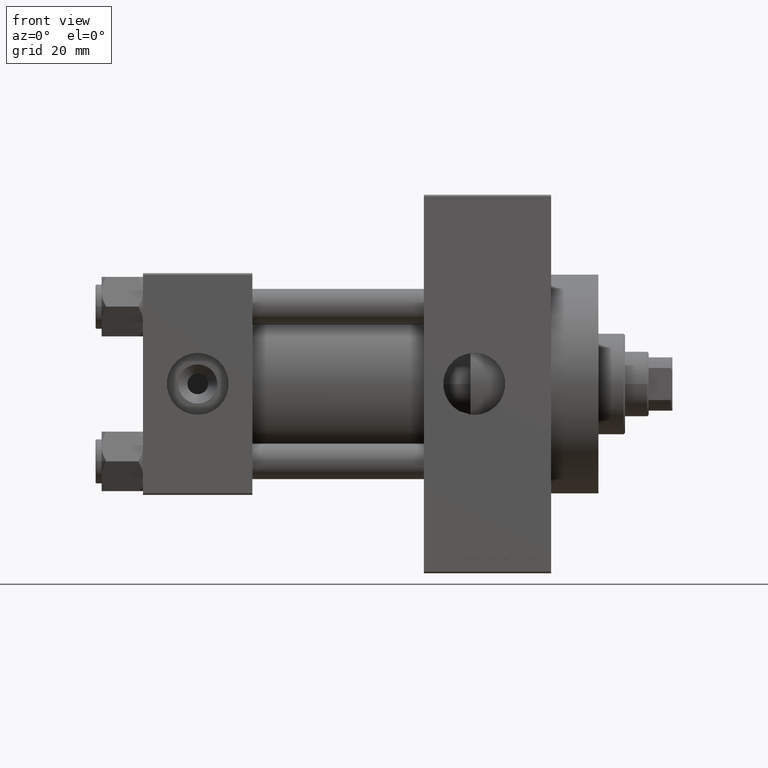
[diagram: clean part render]
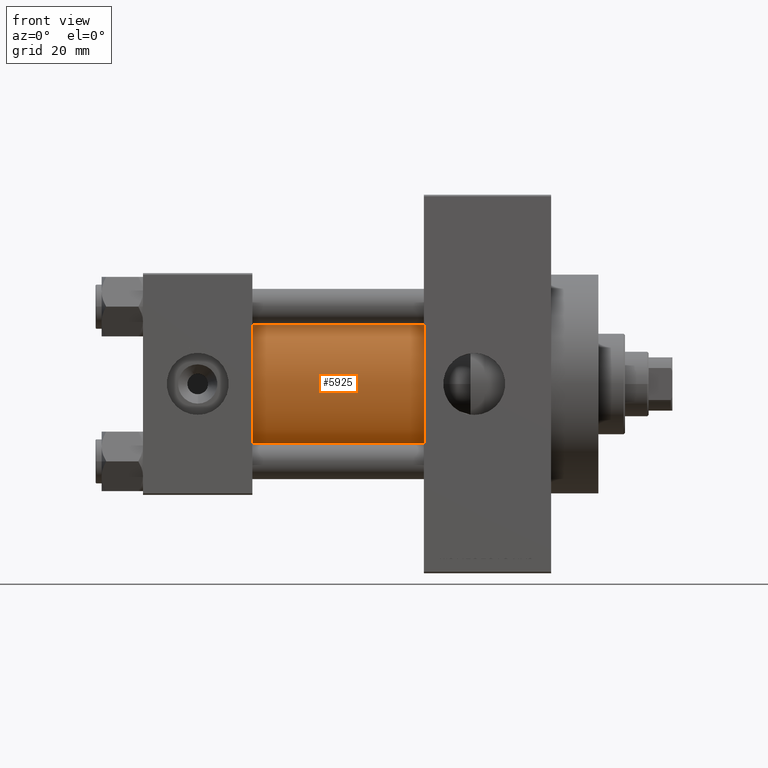
[diagram: same view with one face highlighted and labeled with its STEP entity id]
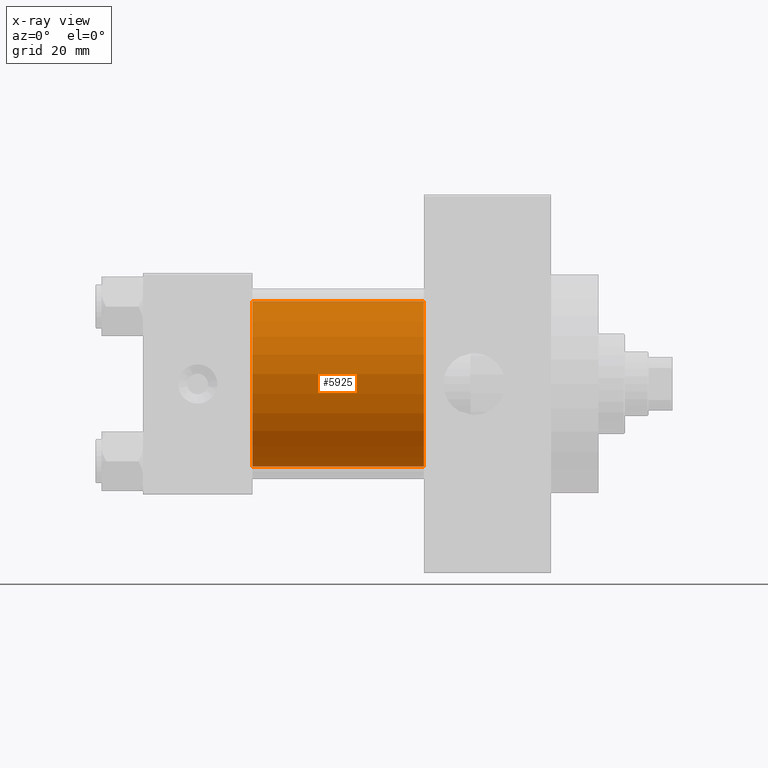
[diagram: x-ray of the same camera — body ghosted, the highlighted face saturated]
A machine part, front view. The second image highlights one B-rep face of the part: STEP entity #5925.
The next image is the same camera in x-ray: the body ghosted, the highlighted face saturated — about 2% of this face is hidden behind the body in this view.
In plain terms, the highlighted cylindrical surface (partial cylindrical patch) has radius 28 mm, axis along (-1, -0, -0).
Its self-contained STEP definition (entity closure, byte-faithful):
#134 = CARTESIAN_POINT ( 'NONE',  ( 37.00000000000000000, 8.269258236473776482E-16, -28.00000000000000000 ) ) ;
#2515 = CARTESIAN_POINT ( 'NONE',  ( 37.00000000000000000, -2.602085213965210642E-15, 28.00000000000000000 ) ) ;
#5925 = ADVANCED_FACE ( 'NONE', ( #14804 ), #22347, .T. ) ;
#7661 = CIRCLE ( 'NONE', #24417, 28.00000000000000000 ) ;
#8524 = CARTESIAN_POINT ( 'NONE',  ( 95.00000000000000000, -2.602085213965210642E-15, 28.00000000000000000 ) ) ;
#9549 = EDGE_CURVE ( 'NONE', #16879, #11946, #7661, .T. ) ;
#9880 = ORIENTED_EDGE ( 'NONE', *, *, #9549, .F. ) ;
#11072 = DIRECTION ( 'NONE',  ( 0.000000000000000000, 0.000000000000000000, 1.000000000000000000 ) ) ;
#11690 = CARTESIAN_POINT ( 'NONE',  ( 95.00000000000000000, 8.269258236473776482E-16, -28.00000000000000000 ) ) ;
#11775 = LINE ( 'NONE', #8524, #28133 ) ;
#11946 = VERTEX_POINT ( 'NONE', #11690 ) ;
#14804 = FACE_OUTER_BOUND ( 'NONE', #41400, .T. ) ;
#15349 = ORIENTED_EDGE ( 'NONE', *, *, #48893, .T. ) ;
#15624 = CARTESIAN_POINT ( 'NONE',  ( 95.00000000000000000, -2.602085213965210642E-15, 28.00000000000000000 ) ) ;
#16879 = VERTEX_POINT ( 'NONE', #15624 ) ;
#17888 = ORIENTED_EDGE ( 'NONE', *, *, #18646, .F. ) ;
#18646 = EDGE_CURVE ( 'NONE', #11946, #32339, #33404, .T. ) ;
#19620 = AXIS2_PLACEMENT_3D ( 'NONE', #22834, #42100, #11072 ) ;
#22347 = CYLINDRICAL_SURFACE ( 'NONE', #19620, 28.00000000000000000 ) ;
#22834 = CARTESIAN_POINT ( 'NONE',  ( 95.00000000000000000, -2.602085213965210642E-15, 0.000000000000000000 ) ) ;
#24417 = AXIS2_PLACEMENT_3D ( 'NONE', #46811, #39804, #39553 ) ;
#24608 = DIRECTION ( 'NONE',  ( 0.000000000000000000, 0.000000000000000000, 1.000000000000000000 ) ) ;
#24860 = CARTESIAN_POINT ( 'NONE',  ( 37.00000000000000000, -2.602085213965210642E-15, 0.000000000000000000 ) ) ;
#27048 = ORIENTED_EDGE ( 'NONE', *, *, #36402, .T. ) ;
#28111 = DIRECTION ( 'NONE',  ( 1.000000000000000000, -0.000000000000000000, 0.000000000000000000 ) ) ;
#28133 = VECTOR ( 'NONE', #39048, 1000.000000000000000 ) ;
#28606 = AXIS2_PLACEMENT_3D ( 'NONE', #24860, #28111, #24608 ) ;
#30335 = VECTOR ( 'NONE', #45155, 1000.000000000000000 ) ;
#31789 = CIRCLE ( 'NONE', #28606, 28.00000000000000000 ) ;
#32339 = VERTEX_POINT ( 'NONE', #134 ) ;
#33404 = LINE ( 'NONE', #37890, #30335 ) ;
#35573 = VERTEX_POINT ( 'NONE', #2515 ) ;
#36402 = EDGE_CURVE ( 'NONE', #35573, #32339, #31789, .T. ) ;
#37890 = CARTESIAN_POINT ( 'NONE',  ( 95.00000000000000000, 8.269258236473776482E-16, -28.00000000000000000 ) ) ;
#39048 = DIRECTION ( 'NONE',  ( -1.000000000000000000, -0.000000000000000000, -0.000000000000000000 ) ) ;
#39553 = DIRECTION ( 'NONE',  ( 0.000000000000000000, 0.000000000000000000, -1.000000000000000000 ) ) ;
#39804 = DIRECTION ( 'NONE',  ( 1.000000000000000000, 0.000000000000000000, 0.000000000000000000 ) ) ;
#41400 = EDGE_LOOP ( 'NONE', ( #17888, #9880, #15349, #27048 ) ) ;
#42100 = DIRECTION ( 'NONE',  ( -1.000000000000000000, -0.000000000000000000, -0.000000000000000000 ) ) ;
#45155 = DIRECTION ( 'NONE',  ( -1.000000000000000000, -0.000000000000000000, -0.000000000000000000 ) ) ;
#46811 = CARTESIAN_POINT ( 'NONE',  ( 95.00000000000000000, -2.602085213965210642E-15, 0.000000000000000000 ) ) ;
#48893 = EDGE_CURVE ( 'NONE', #16879, #35573, #11775, .T. ) ;